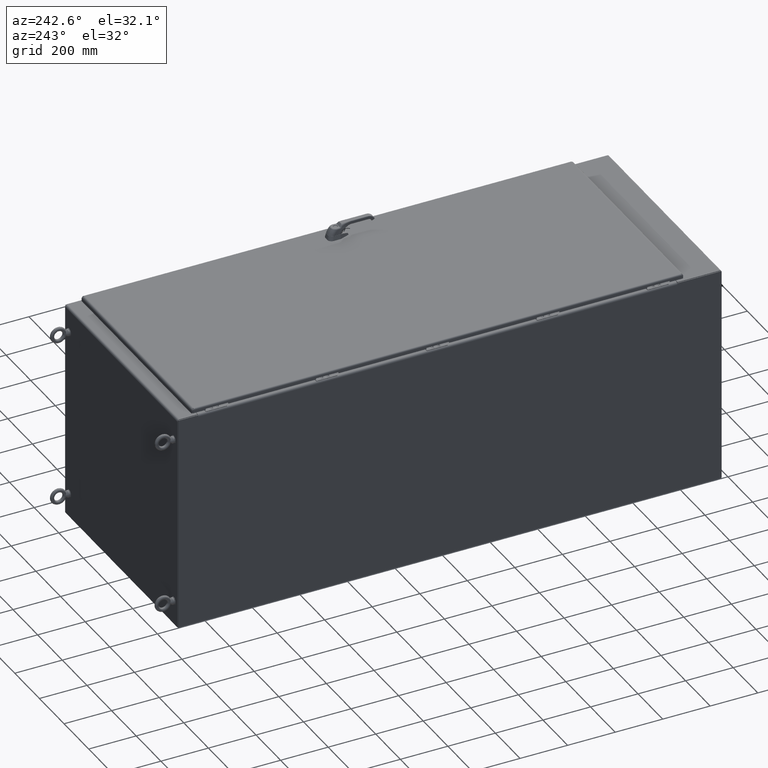
[diagram: clean part render]
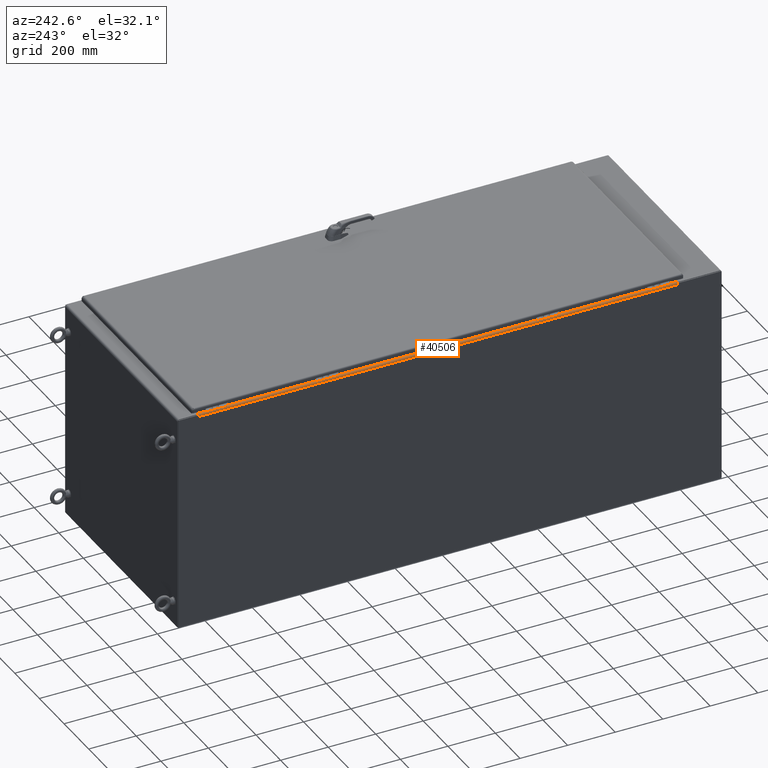
[diagram: same view with one face highlighted and labeled with its STEP entity id]
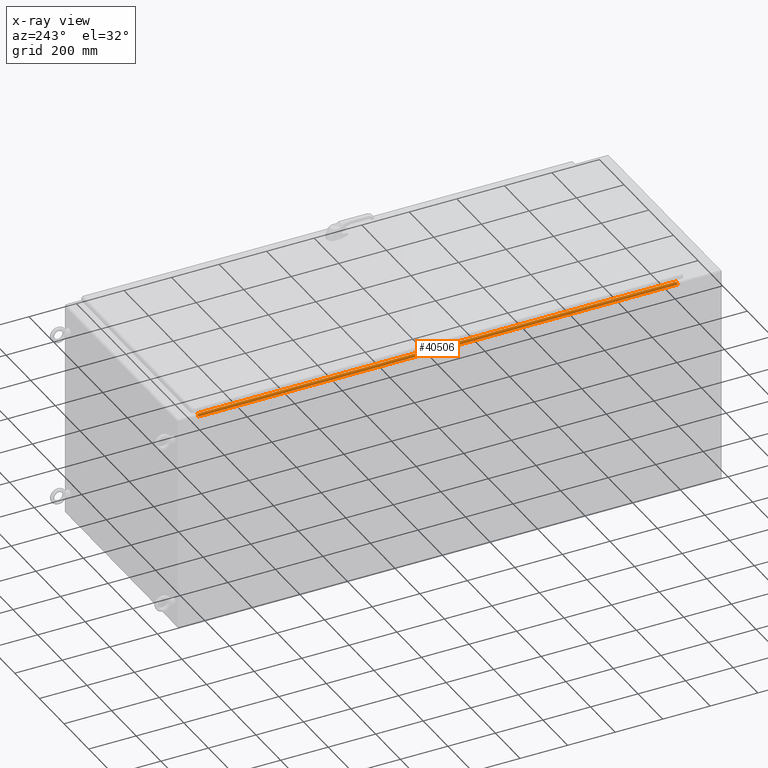
[diagram: x-ray of the same camera — body ghosted, the highlighted face saturated]
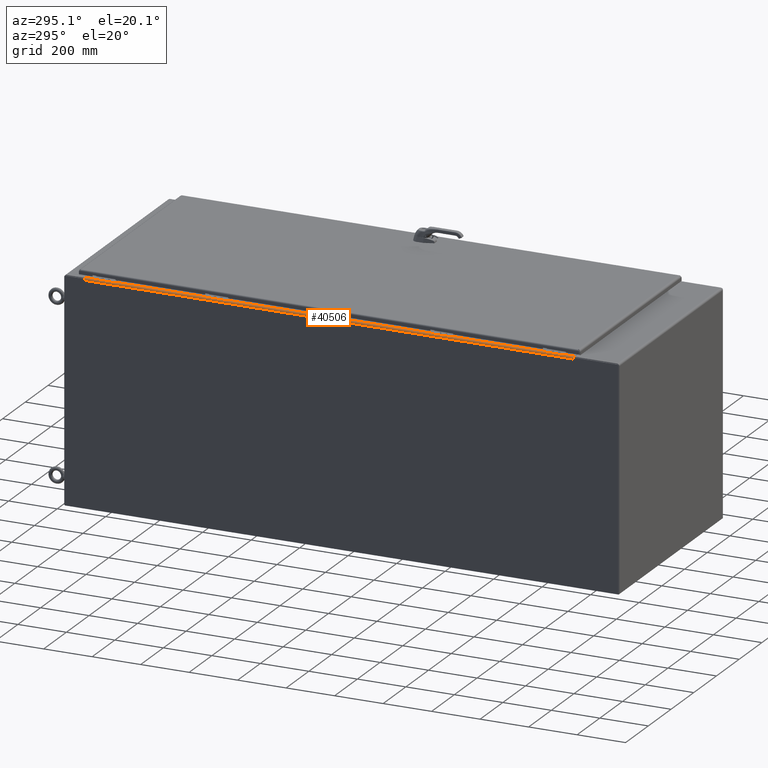
[diagram: same view with one face highlighted and labeled with its STEP entity id]
A machine part, auxiliary view. The second image highlights one B-rep face of the part: STEP entity #40506.
The next image is the same camera in x-ray: the body ghosted, the highlighted face saturated — about 0% of this face is hidden behind the body in this view.
A second angle (auxiliary view) of the same face is appended — the face is thin or edge-on in the first view.
In plain terms, the highlighted cylindrical surface (edge-blend (fillet) strip) has radius 8.9916 mm, axis along (-0, 1, -0).
Its self-contained STEP definition (entity closure, byte-faithful):
#2110=CIRCLE('',#44085,0.353999999999999);
#2111=CIRCLE('',#44086,0.354000000000001);
#4522=CYLINDRICAL_SURFACE('',#44084,0.353999999999999);
#5641=FACE_OUTER_BOUND('',#8165,.T.);
#8165=EDGE_LOOP('',(#27268,#27269,#27270,#27271));
#10996=LINE('',#62443,#13951);
#10997=LINE('',#62447,#13952);
#13951=VECTOR('',#49616,0.393700787401575);
#13952=VECTOR('',#49619,0.393700787401575);
#16820=VERTEX_POINT('',#62434);
#16822=VERTEX_POINT('',#62442);
#16823=VERTEX_POINT('',#62444);
#16824=VERTEX_POINT('',#62446);
#20756=EDGE_CURVE('',#16820,#16822,#10996,.T.);
#20757=EDGE_CURVE('',#16823,#16820,#2110,.T.);
#20758=EDGE_CURVE('',#16824,#16823,#10997,.T.);
#20759=EDGE_CURVE('',#16822,#16824,#2111,.T.);
#27268=ORIENTED_EDGE('',*,*,#20756,.F.);
#27269=ORIENTED_EDGE('',*,*,#20757,.F.);
#27270=ORIENTED_EDGE('',*,*,#20758,.F.);
#27271=ORIENTED_EDGE('',*,*,#20759,.F.);
#40506=ADVANCED_FACE('',(#5641),#4522,.T.);
#44084=AXIS2_PLACEMENT_3D('',#62441,#49614,#49615);
#44085=AXIS2_PLACEMENT_3D('',#62445,#49617,#49618);
#44086=AXIS2_PLACEMENT_3D('',#62448,#49620,#49621);
#49614=DIRECTION('center_axis',(-9.33331520906682E-17,1.,0.));
#49615=DIRECTION('ref_axis',(0.,0.,1.));
#49616=DIRECTION('',(9.33539664053699E-17,-1.,-3.56991410839109E-35));
#49617=DIRECTION('center_axis',(-9.33331520906682E-17,1.,0.));
#49618=DIRECTION('ref_axis',(-1.58045895226679E-14,0.,1.));
#49619=DIRECTION('',(-7.04859803593627E-17,1.,0.));
#49620=DIRECTION('center_axis',(9.33331520906682E-17,-1.,0.));
#49621=DIRECTION('ref_axis',(1.,0.,5.43282764841705E-15));
#62434=CARTESIAN_POINT('',(18.0625,41.6875,-0.249999999999999));
#62441=CARTESIAN_POINT('Origin',(17.7085,2.,-0.249999999999999));
#62442=CARTESIAN_POINT('',(18.0625,-37.6875,-0.249999999999999));
#62443=CARTESIAN_POINT('',(18.0625,2.,-0.249999999999999));
#62444=CARTESIAN_POINT('',(17.7085,41.6875,0.104));
#62445=CARTESIAN_POINT('Origin',(17.7085,41.6875,-0.249999999999999));
#62446=CARTESIAN_POINT('',(17.7085,-37.6875,0.104));
#62447=CARTESIAN_POINT('',(17.7085,-18.84375,0.104));
#62448=CARTESIAN_POINT('Origin',(17.7085,-37.6875,-0.249999999999999));